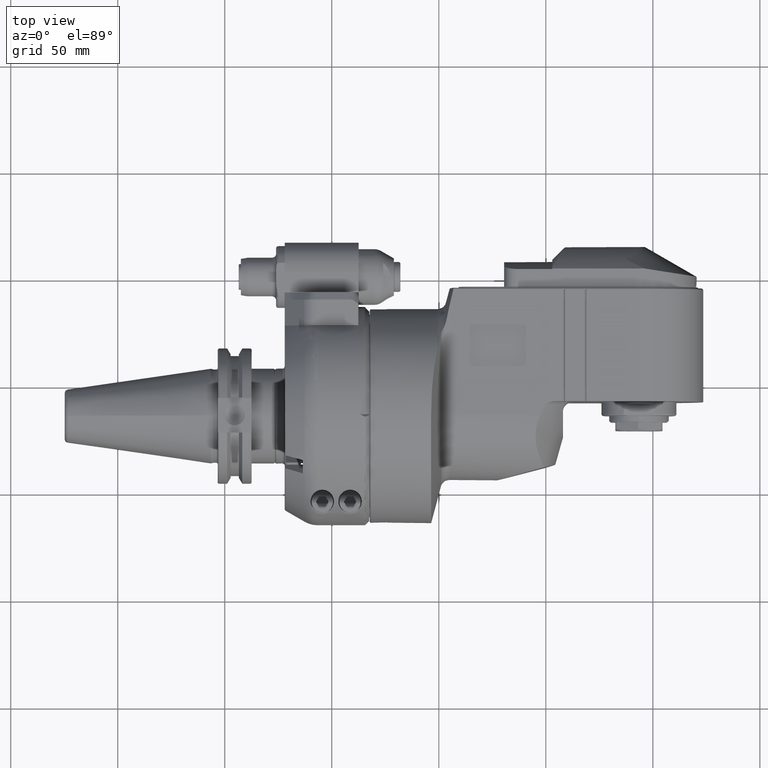
[diagram: clean part render]
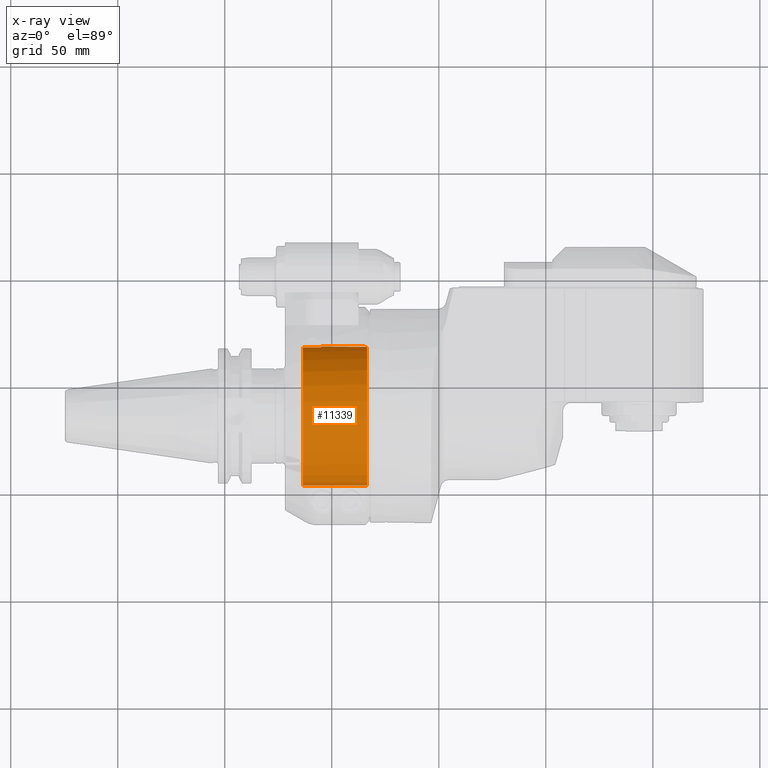
[diagram: x-ray — body ghosted, one internal face saturated and labeled with its STEP entity id]
A machine part, top view, then the same camera in x-ray: the body is ghosted and one INTERNAL B-rep face — a face not visible from any outside direction — is saturated and labeled: STEP entity #11339.
In plain terms, the highlighted cylindrical surface (partial cylindrical patch) has radius 32.5 mm, axis along (1, 0, 0).
Its self-contained STEP definition (entity closure, byte-faithful):
#1132=FACE_OUTER_BOUND('',#1876,.T.);
#1876=EDGE_LOOP('',(#8370,#8371,#8372,#8373,#8374,#8375,#8376,#8377));
#2723=LINE('',#18404,#3487);
#2726=LINE('',#18415,#3490);
#2727=LINE('',#18417,#3491);
#2728=LINE('',#18420,#3492);
#3487=VECTOR('',#14176,29.99999999998);
#3490=VECTOR('',#14189,8.5);
#3491=VECTOR('',#14190,8.5);
#3492=VECTOR('',#14193,30.);
#4196=CIRCLE('',#12218,32.5);
#4208=CIRCLE('',#12235,32.5);
#4232=CIRCLE('',#12276,32.5);
#4233=CIRCLE('',#12278,32.5);
#4984=VERTEX_POINT('',#18037);
#4985=VERTEX_POINT('',#18039);
#5003=VERTEX_POINT('',#18121);
#5004=VERTEX_POINT('',#18123);
#5041=VERTEX_POINT('',#18403);
#5044=VERTEX_POINT('',#18411);
#5045=VERTEX_POINT('',#18416);
#5046=VERTEX_POINT('',#18418);
#6221=EDGE_CURVE('',#4984,#4985,#4196,.T.);
#6245=EDGE_CURVE('',#5003,#5004,#4208,.T.);
#6300=EDGE_CURVE('',#5041,#5004,#2723,.T.);
#6304=EDGE_CURVE('',#5041,#5044,#4232,.T.);
#6306=EDGE_CURVE('',#4985,#5003,#2726,.T.);
#6307=EDGE_CURVE('',#4984,#5045,#2727,.T.);
#6308=EDGE_CURVE('',#5046,#5045,#4233,.T.);
#6309=EDGE_CURVE('',#5046,#5044,#2728,.T.);
#8370=ORIENTED_EDGE('',*,*,#6306,.F.);
#8371=ORIENTED_EDGE('',*,*,#6221,.F.);
#8372=ORIENTED_EDGE('',*,*,#6307,.T.);
#8373=ORIENTED_EDGE('',*,*,#6308,.F.);
#8374=ORIENTED_EDGE('',*,*,#6309,.T.);
#8375=ORIENTED_EDGE('',*,*,#6304,.F.);
#8376=ORIENTED_EDGE('',*,*,#6300,.T.);
#8377=ORIENTED_EDGE('',*,*,#6245,.F.);
#11025=CYLINDRICAL_SURFACE('',#12277,32.5);
#11339=ADVANCED_FACE('',(#1132),#11025,.F.);
#12218=AXIS2_PLACEMENT_3D('',#18040,#14045,#14046);
#12235=AXIS2_PLACEMENT_3D('',#18124,#14087,#14088);
#12276=AXIS2_PLACEMENT_3D('',#18412,#14184,#14185);
#12277=AXIS2_PLACEMENT_3D('',#18414,#14187,#14188);
#12278=AXIS2_PLACEMENT_3D('',#18419,#14191,#14192);
#14045=DIRECTION('center_axis',(1.,0.,0.));
#14046=DIRECTION('ref_axis',(0.,0.986430545782588,-0.164179104477598));
#14087=DIRECTION('center_axis',(1.,0.,0.));
#14088=DIRECTION('ref_axis',(0.,0.986430545782588,0.164179104477598));
#14176=DIRECTION('',(-1.,1.421085471521E-14,3.148370453234E-13));
#14184=DIRECTION('center_axis',(-1.,0.,0.));
#14185=DIRECTION('ref_axis',(0.,-0.998934343430642,0.0461538461538519));
#14187=DIRECTION('center_axis',(1.,0.,0.));
#14188=DIRECTION('ref_axis',(0.,1.,1.38678298153134E-13));
#14189=DIRECTION('',(-1.,0.,0.));
#14190=DIRECTION('',(-1.,0.,0.));
#14191=DIRECTION('center_axis',(1.,0.,0.));
#14192=DIRECTION('ref_axis',(0.,-0.998934343430642,-0.0461538461538519));
#14193=DIRECTION('',(1.,0.,0.));
#18037=CARTESIAN_POINT('',(-148.5,32.05899273793,-5.335820895522));
#18039=CARTESIAN_POINT('',(-148.5,32.05899273793,5.335820895522));
#18040=CARTESIAN_POINT('Origin',(-148.5,0.,0.));
#18121=CARTESIAN_POINT('',(-157.,32.05899273793,5.335820895522));
#18123=CARTESIAN_POINT('',(-157.,-32.4653661615,1.5));
#18124=CARTESIAN_POINT('Origin',(-157.,0.,0.));
#18403=CARTESIAN_POINT('',(-127.00000000002,-32.4653661615,1.499999999991));
#18404=CARTESIAN_POINT('',(-127.00000000002,-32.4653661615,1.499999999991));
#18411=CARTESIAN_POINT('',(-127.,-32.4653661615,-1.5));
#18412=CARTESIAN_POINT('Origin',(-127.,0.,0.));
#18414=CARTESIAN_POINT('Origin',(-142.5,0.,0.));
#18415=CARTESIAN_POINT('',(-148.5,32.05899273793,5.335820895522));
#18416=CARTESIAN_POINT('',(-157.,32.05899273793,-5.335820895522));
#18417=CARTESIAN_POINT('',(-148.5,32.05899273793,-5.335820895522));
#18418=CARTESIAN_POINT('',(-157.,-32.4653661615,-1.5));
#18419=CARTESIAN_POINT('Origin',(-157.,0.,0.));
#18420=CARTESIAN_POINT('',(-157.,-32.4653661615,-1.5));